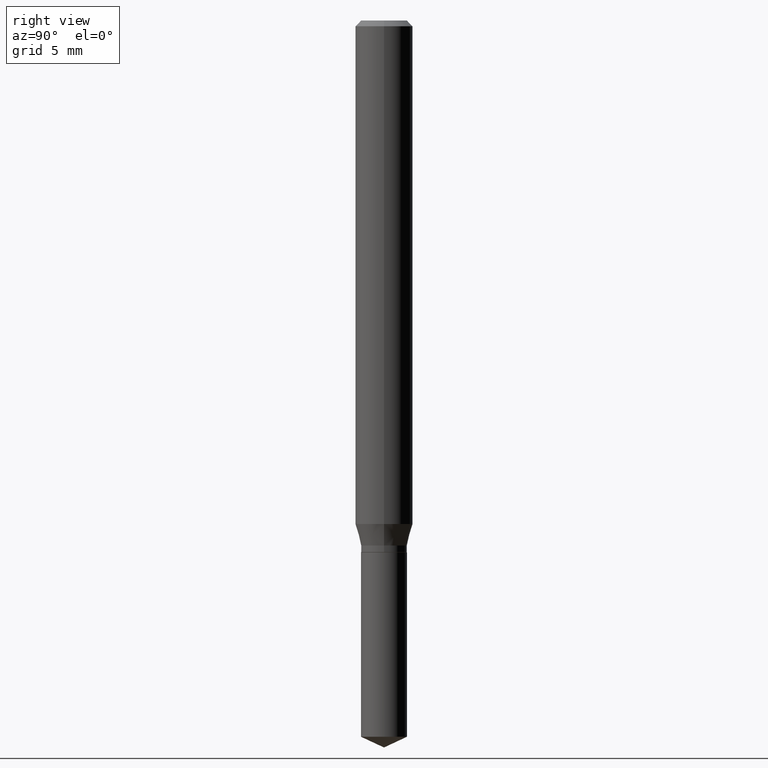
[diagram: clean part render]
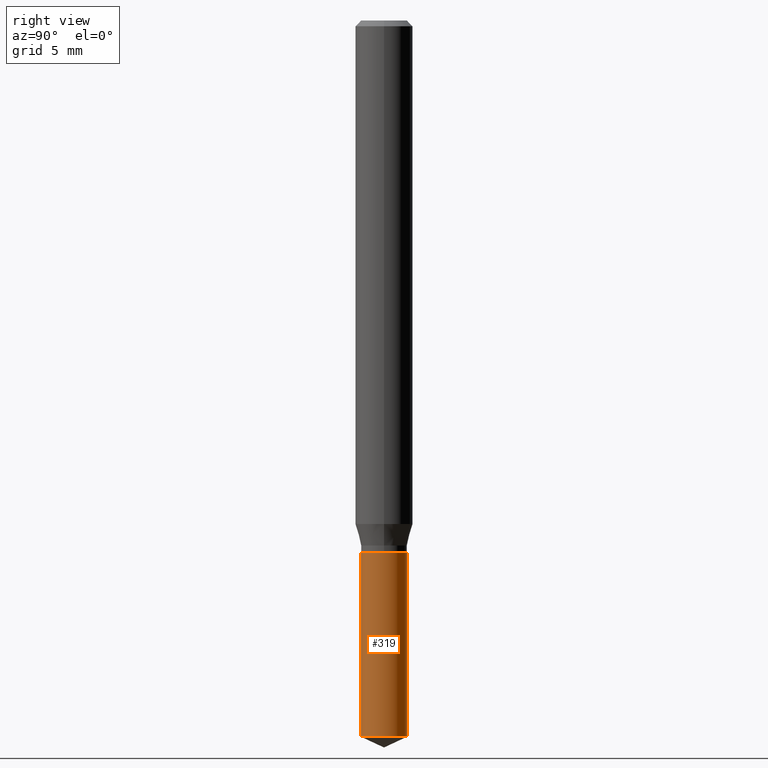
[diagram: same view with one face highlighted and labeled with its STEP entity id]
A machine part, right view. The second image highlights one B-rep face of the part: STEP entity #319.
In plain terms, the highlighted cylindrical surface (edge-blend (fillet) strip) has radius 1.2001 mm, axis along (-0, 0, 1).
Its self-contained STEP definition (entity closure, byte-faithful):
#13 = CARTESIAN_POINT ( 'NONE',  ( 3.357314426466833320E-16, 0.04724999999999485167, -1.474066963152176557 ) ) ;
#14 = VECTOR ( 'NONE', #420, 39.37007874015748143 ) ;
#16 = CIRCLE ( 'NONE', #333, 0.04724999999999999339 ) ;
#42 = CARTESIAN_POINT ( 'NONE',  ( 3.357314426466833320E-16, 0.04724999999999617006, -1.094500000000000028 ) ) ;
#51 = AXIS2_PLACEMENT_3D ( 'NONE', #398, #325, #99 ) ;
#55 = CYLINDRICAL_SURFACE ( 'NONE', #51, 0.04724999999999999339 ) ;
#71 = EDGE_CURVE ( 'NONE', #121, #88, #263, .T. ) ;
#85 = ORIENTED_EDGE ( 'NONE', *, *, #277, .F. ) ;
#88 = VERTEX_POINT ( 'NONE', #42 ) ;
#93 = FACE_OUTER_BOUND ( 'NONE', #338, .T. ) ;
#94 = AXIS2_PLACEMENT_3D ( 'NONE', #481, #413, #116 ) ;
#99 = DIRECTION ( 'NONE',  ( -6.982962677686265922E-15, -1.000000000000000000, 2.890844437739961472E-15 ) ) ;
#116 = DIRECTION ( 'NONE',  ( -6.982962677686265922E-15, -1.000000000000000000, 5.781688875479922944E-15 ) ) ;
#121 = VERTEX_POINT ( 'NONE', #13 ) ;
#162 = ORIENTED_EDGE ( 'NONE', *, *, #478, .F. ) ;
#169 = ORIENTED_EDGE ( 'NONE', *, *, #313, .T. ) ;
#242 = DIRECTION ( 'NONE',  ( -6.982962677686265922E-15, -1.000000000000000000, 2.890844437739961472E-15 ) ) ;
#243 = ORIENTED_EDGE ( 'NONE', *, *, #71, .T. ) ;
#258 = VECTOR ( 'NONE', #260, 39.37007874015748143 ) ;
#260 = DIRECTION ( 'NONE',  ( -2.445458899330790108E-29, 3.491495526022433599E-15, 1.000000000000000000 ) ) ;
#263 = LINE ( 'NONE', #275, #14 ) ;
#273 = DIRECTION ( 'NONE',  ( -2.445458899330790108E-29, 3.491495526022433205E-15, 1.000000000000000000 ) ) ;
#275 = CARTESIAN_POINT ( 'NONE',  ( 3.357314426466740136E-16, 0.04724999999999617006, -1.094500000000000028 ) ) ;
#276 = CARTESIAN_POINT ( 'NONE',  ( 2.676565608369631794E-29, -3.821426325363822773E-15, -1.094499999999999806 ) ) ;
#277 = EDGE_CURVE ( 'NONE', #316, #383, #299, .T. ) ;
#299 = LINE ( 'NONE', #439, #258 ) ;
#313 = EDGE_CURVE ( 'NONE', #316, #121, #356, .T. ) ;
#316 = VERTEX_POINT ( 'NONE', #349 ) ;
#319 = ADVANCED_FACE ( 'NONE', ( #93 ), #55, .T. ) ;
#325 = DIRECTION ( 'NONE',  ( -2.445458899330790108E-29, 3.491495526022433205E-15, 1.000000000000000000 ) ) ;
#333 = AXIS2_PLACEMENT_3D ( 'NONE', #276, #273, #242 ) ;
#338 = EDGE_LOOP ( 'NONE', ( #169, #243, #162, #85 ) ) ;
#349 = CARTESIAN_POINT ( 'NONE',  ( -3.299449865206399663E-16, -0.04725000000000514205, -1.474066963152175891 ) ) ;
#356 = CIRCLE ( 'NONE', #94, 0.04724999999999999339 ) ;
#383 = VERTEX_POINT ( 'NONE', #408 ) ;
#398 = CARTESIAN_POINT ( 'NONE',  ( 2.676565608369631794E-29, -3.821426325363822773E-15, -1.094499999999999806 ) ) ;
#408 = CARTESIAN_POINT ( 'NONE',  ( -3.299449865206492354E-16, -0.04725000000000382366, -1.094499999999999806 ) ) ;
#413 = DIRECTION ( 'NONE',  ( -2.445458899330790108E-29, 3.491495526022433205E-15, 1.000000000000000000 ) ) ;
#420 = DIRECTION ( 'NONE',  ( -2.445458899330790108E-29, 3.491495526022433599E-15, 1.000000000000000000 ) ) ;
#439 = CARTESIAN_POINT ( 'NONE',  ( -3.299449865206492354E-16, -0.04725000000000382366, -1.094499999999999806 ) ) ;
#478 = EDGE_CURVE ( 'NONE', #383, #88, #16, .T. ) ;
#481 = CARTESIAN_POINT ( 'NONE',  ( 3.604781016302083340E-29, -5.146682679035568391E-15, -1.474066963152176113 ) ) ;